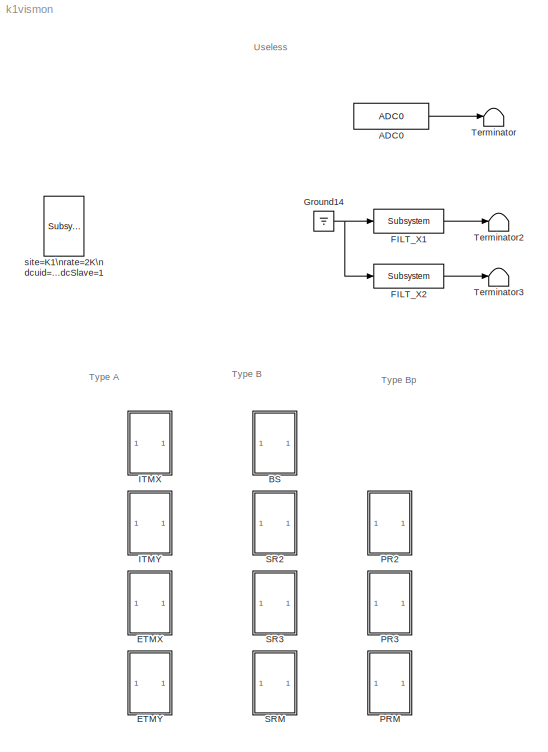
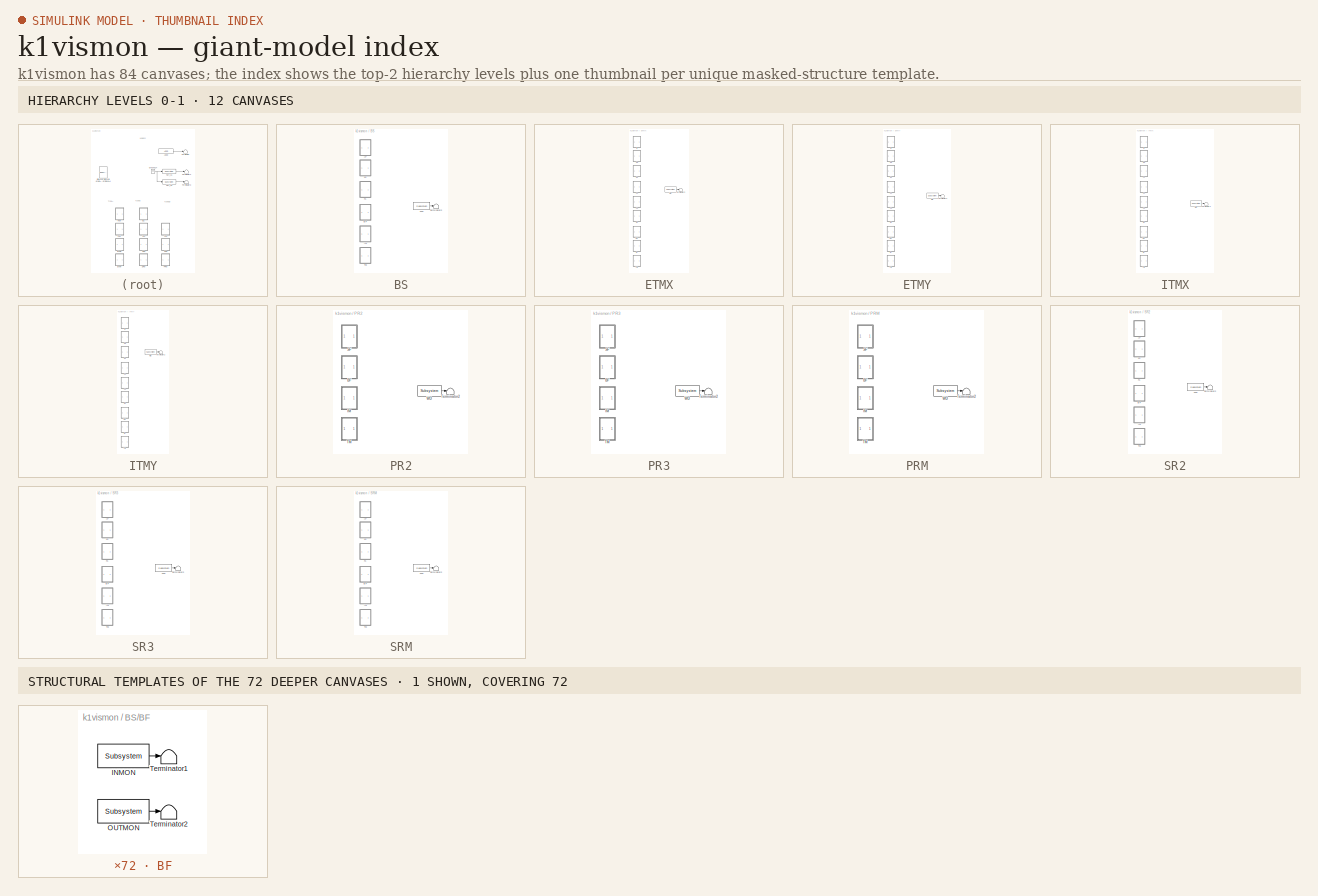
[diagram: thumbnail index - top-2 hierarchy levels (12 canvases) + 1 structural-template representatives of the remaining 72 canvases]
MODEL k1vismon
KIND model
BLOCK [Reference] ADC0  REF=cdsAdcx0/ADC0
  AttributesFormatString = %<Description>\\n%<Tag>
  Description = type-GSC_16AI64SSA\ncard_num=0
  Ports = [0, 1]
  SID = 257
  SourceBlock = cdsAdcx0/ADC0
  SourceType = SubSystem
  Tag = cdsAdc
BLOCK [SubSystem] BS
  Ports = []
  RequestExecContextInheritance = off
  SID = 448
  Variant = off
BLOCK [SubSystem] BS/BF
  Ports = []
  RequestExecContextInheritance = off
  SID = 449
  Variant = off
BLOCK [Reference] BS/BF/INMON  REF=cdsEpicsIn/Subsystem
  AttributesFormatString = %<Tag>
  Description = Purpose:                                                                              \nCreate an EPICS input channel connection to the FE realtime controls.                 \n                                                                                      \nOperation:                                                                            \nOutputs value from an EPICS ai record. Value is ...<+266ch>  <repeated x155 — deduplicated; at blocks: INMON, OUTMON, WD>
  Ports = [0, 1]
  SID = 450
  SourceBlock = cdsEpicsIn/Subsystem
  SourceType = SubSystem
  Tag = cdsEpicsIn
BLOCK [Reference] BS/BF/OUTMON  REF=cdsEpicsIn/Subsystem
  AttributesFormatString = %<Tag>
  Ports = [0, 1]
  SID = 451
  SourceBlock = cdsEpicsIn/Subsystem
  SourceType = SubSystem
  Tag = cdsEpicsIn
BLOCK [Terminator] BS/BF/Terminator1
  SID = 452
BLOCK [Terminator] BS/BF/Terminator2
  SID = 453
BLOCK [SubSystem] BS/F0
  Ports = []
  RequestExecContextInheritance = off
  SID = 454
  Variant = off
BLOCK [Reference] BS/F0/INMON  REF=cdsEpicsIn/Subsystem
  AttributesFormatString = %<Tag>
  Ports = [0, 1]
  SID = 455
  SourceBlock = cdsEpicsIn/Subsystem
  SourceType = SubSystem
  Tag = cdsEpicsIn
BLOCK [Reference] BS/F0/OUTMON  REF=cdsEpicsIn/Subsystem
  AttributesFormatString = %<Tag>
  Ports = [0, 1]
  SID = 456
  SourceBlock = cdsEpicsIn/Subsystem
  SourceType = SubSystem
  Tag = cdsEpicsIn
BLOCK [Terminator] BS/F0/Terminator1
  SID = 457
BLOCK [Terminator] BS/F0/Terminator2
  SID = 458
BLOCK [SubSystem] BS/F1
  Ports = []
  RequestExecContextInheritance = off
  SID = 459
  Variant = off
BLOCK [Reference] BS/F1/INMON  REF=cdsEpicsIn/Subsystem
  AttributesFormatString = %<Tag>
  Ports = [0, 1]
  SID = 460
  SourceBlock = cdsEpicsIn/Subsystem
  SourceType = SubSystem
  Tag = cdsEpicsIn
BLOCK [Reference] BS/F1/OUTMON  REF=cdsEpicsIn/Subsystem
  AttributesFormatString = %<Tag>
  Ports = [0, 1]
  SID = 461
  SourceBlock = cdsEpicsIn/Subsystem
  SourceType = SubSystem
  Tag = cdsEpicsIn
BLOCK [Terminator] BS/F1/Terminator1
  SID = 462
BLOCK [Terminator] BS/F1/Terminator2
  SID = 463
BLOCK [SubSystem] BS/IM
  Ports = []
  RequestExecContextInheritance = off
  SID = 474
  Variant = off
BLOCK [Reference] BS/IM/INMON  REF=cdsEpicsIn/Subsystem
  AttributesFormatString = %<Tag>
  Ports = [0, 1]
  SID = 475
  SourceBlock = cdsEpicsIn/Subsystem
  SourceType = SubSystem
  Tag = cdsEpicsIn
BLOCK [Reference] BS/IM/OUTMON  REF=cdsEpicsIn/Subsystem
  AttributesFormatString = %<Tag>
  Ports = [0, 1]
  SID = 476
  SourceBlock = cdsEpicsIn/Subsystem
  SourceType = SubSystem
  Tag = cdsEpicsIn
BLOCK [Terminator] BS/IM/Terminator1
  SID = 477
BLOCK [Terminator] BS/IM/Terminator2
  SID = 478
BLOCK [SubSystem] BS/IP
  Ports = []
  RequestExecContextInheritance = off
  SID = 479
  Variant = off
BLOCK [Reference] BS/IP/INMON  REF=cdsEpicsIn/Subsystem
  AttributesFormatString = %<Tag>
  Ports = [0, 1]
  SID = 480
  SourceBlock = cdsEpicsIn/Subsystem
  SourceType = SubSystem
  Tag = cdsEpicsIn
BLOCK [Reference] BS/IP/OUTMON  REF=cdsEpicsIn/Subsystem
  AttributesFormatString = %<Tag>
  Ports = [0, 1]
  SID = 481
  SourceBlock = cdsEpicsIn/Subsystem
  SourceType = SubSystem
  Tag = cdsEpicsIn
BLOCK [Terminator] BS/IP/Terminator1
  SID = 482
BLOCK [Terminator] BS/IP/Terminator2
  SID = 483
BLOCK [SubSystem] BS/TM
  Ports = []
  RequestExecContextInheritance = off
  SID = 489
  Variant = off
BLOCK [Reference] BS/TM/INMON  REF=cdsEpicsIn/Subsystem
  AttributesFormatString = %<Tag>
  Ports = [0, 1]
  SID = 490
  SourceBlock = cdsEpicsIn/Subsystem
  SourceType = SubSystem
  Tag = cdsEpicsIn
BLOCK [Reference] BS/TM/OUTMON  REF=cdsEpicsIn/Subsystem
  AttributesFormatString = %<Tag>
  Ports = [0, 1]
  SID = 491
  SourceBlock = cdsEpicsIn/Subsystem
  SourceType = SubSystem
  Tag = cdsEpicsIn
BLOCK [Terminator] BS/TM/Terminator1
  SID = 492
BLOCK [Terminator] BS/TM/Terminator2
  SID = 493
BLOCK [Terminator] BS/Terminator2
  SID = 502
BLOCK [Reference] BS/WD  REF=cdsEpicsIn/Subsystem
  AttributesFormatString = %<Tag>
  Ports = [0, 1]
  SID = 503
  SourceBlock = cdsEpicsIn/Subsystem
  SourceType = SubSystem
  Tag = cdsEpicsIn
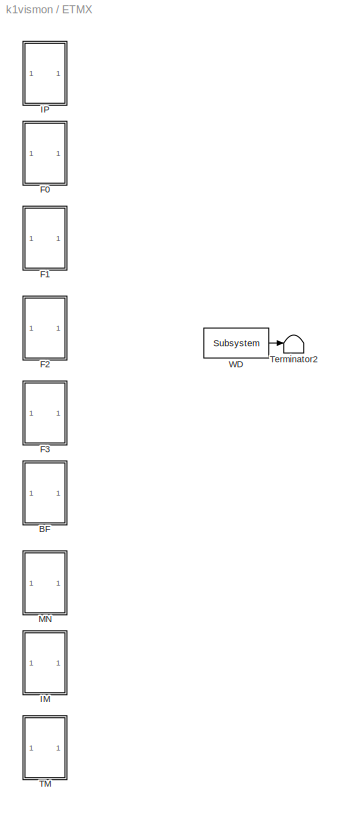
BLOCK [SubSystem] ETMX
  Ports = []
  RequestExecContextInheritance = off
  SID = 356
  Variant = off
BLOCK [SubSystem] ETMX/BF
  Ports = []
  RequestExecContextInheritance = off
  SID = 357
  Variant = off
BLOCK [Reference] ETMX/BF/INMON  REF=cdsEpicsIn/Subsystem
  AttributesFormatString = %<Tag>
  Ports = [0, 1]
  SID = 358
  SourceBlock = cdsEpicsIn/Subsystem
  SourceType = SubSystem
  Tag = cdsEpicsIn
BLOCK [Reference] ETMX/BF/OUTMON  REF=cdsEpicsIn/Subsystem
  AttributesFormatString = %<Tag>
  Ports = [0, 1]
  SID = 359
  SourceBlock = cdsEpicsIn/Subsystem
  SourceType = SubSystem
  Tag = cdsEpicsIn
BLOCK [Terminator] ETMX/BF/Terminator1
  SID = 360
BLOCK [Terminator] ETMX/BF/Terminator2
  SID = 361
BLOCK [SubSystem] ETMX/F0
  Ports = []
  RequestExecContextInheritance = off
  SID = 362
  Variant = off
BLOCK [Reference] ETMX/F0/INMON  REF=cdsEpicsIn/Subsystem
  AttributesFormatString = %<Tag>
  Ports = [0, 1]
  SID = 363
  SourceBlock = cdsEpicsIn/Subsystem
  SourceType = SubSystem
  Tag = cdsEpicsIn
BLOCK [Reference] ETMX/F0/OUTMON  REF=cdsEpicsIn/Subsystem
  AttributesFormatString = %<Tag>
  Ports = [0, 1]
  SID = 364
  SourceBlock = cdsEpicsIn/Subsystem
  SourceType = SubSystem
  Tag = cdsEpicsIn
BLOCK [Terminator] ETMX/F0/Terminator1
  SID = 365
BLOCK [Terminator] ETMX/F0/Terminator2
  SID = 366
BLOCK [SubSystem] ETMX/F1
  Ports = []
  RequestExecContextInheritance = off
  SID = 367
  Variant = off
BLOCK [Reference] ETMX/F1/INMON  REF=cdsEpicsIn/Subsystem
  AttributesFormatString = %<Tag>
  Ports = [0, 1]
  SID = 368
  SourceBlock = cdsEpicsIn/Subsystem
  SourceType = SubSystem
  Tag = cdsEpicsIn
BLOCK [Reference] ETMX/F1/OUTMON  REF=cdsEpicsIn/Subsystem
  AttributesFormatString = %<Tag>
  Ports = [0, 1]
  SID = 369
  SourceBlock = cdsEpicsIn/Subsystem
  SourceType = SubSystem
  Tag = cdsEpicsIn
BLOCK [Terminator] ETMX/F1/Terminator1
  SID = 370
BLOCK [Terminator] ETMX/F1/Terminator2
  SID = 371
BLOCK [SubSystem] ETMX/F2
  Ports = []
  RequestExecContextInheritance = off
  SID = 372
  Variant = off
BLOCK [Reference] ETMX/F2/INMON  REF=cdsEpicsIn/Subsystem
  AttributesFormatString = %<Tag>
  Ports = [0, 1]
  SID = 373
  SourceBlock = cdsEpicsIn/Subsystem
  SourceType = SubSystem
  Tag = cdsEpicsIn
BLOCK [Reference] ETMX/F2/OUTMON  REF=cdsEpicsIn/Subsystem
  AttributesFormatString = %<Tag>
  Ports = [0, 1]
  SID = 374
  SourceBlock = cdsEpicsIn/Subsystem
  SourceType = SubSystem
  Tag = cdsEpicsIn
BLOCK [Terminator] ETMX/F2/Terminator1
  SID = 375
BLOCK [Terminator] ETMX/F2/Terminator2
  SID = 376
BLOCK [SubSystem] ETMX/F3
  Ports = []
  RequestExecContextInheritance = off
  SID = 377
  Variant = off
BLOCK [Reference] ETMX/F3/INMON  REF=cdsEpicsIn/Subsystem
  AttributesFormatString = %<Tag>
  Ports = [0, 1]
  SID = 378
  SourceBlock = cdsEpicsIn/Subsystem
  SourceType = SubSystem
  Tag = cdsEpicsIn
BLOCK [Reference] ETMX/F3/OUTMON  REF=cdsEpicsIn/Subsystem
  AttributesFormatString = %<Tag>
  Ports = [0, 1]
  SID = 379
  SourceBlock = cdsEpicsIn/Subsystem
  SourceType = SubSystem
  Tag = cdsEpicsIn
BLOCK [Terminator] ETMX/F3/Terminator1
  SID = 380
BLOCK [Terminator] ETMX/F3/Terminator2
  SID = 381
BLOCK [SubSystem] ETMX/IM
  Ports = []
  RequestExecContextInheritance = off
  SID = 382
  Variant = off
BLOCK [Reference] ETMX/IM/INMON  REF=cdsEpicsIn/Subsystem
  AttributesFormatString = %<Tag>
  Ports = [0, 1]
  SID = 383
  SourceBlock = cdsEpicsIn/Subsystem
  SourceType = SubSystem
  Tag = cdsEpicsIn
BLOCK [Reference] ETMX/IM/OUTMON  REF=cdsEpicsIn/Subsystem
  AttributesFormatString = %<Tag>
  Ports = [0, 1]
  SID = 384
  SourceBlock = cdsEpicsIn/Subsystem
  SourceType = SubSystem
  Tag = cdsEpicsIn
BLOCK [Terminator] ETMX/IM/Terminator1
  SID = 385
BLOCK [Terminator] ETMX/IM/Terminator2
  SID = 386
BLOCK [SubSystem] ETMX/IP
  Ports = []
  RequestExecContextInheritance = off
  SID = 387
  Variant = off
BLOCK [Reference] ETMX/IP/INMON  REF=cdsEpicsIn/Subsystem
  AttributesFormatString = %<Tag>
  Ports = [0, 1]
  SID = 388
  SourceBlock = cdsEpicsIn/Subsystem
  SourceType = SubSystem
  Tag = cdsEpicsIn
BLOCK [Reference] ETMX/IP/OUTMON  REF=cdsEpicsIn/Subsystem
  AttributesFormatString = %<Tag>
  Ports = [0, 1]
  SID = 389
  SourceBlock = cdsEpicsIn/Subsystem
  SourceType = SubSystem
  Tag = cdsEpicsIn
BLOCK [Terminator] ETMX/IP/Terminator1
  SID = 390
BLOCK [Terminator] ETMX/IP/Terminator2
  SID = 391
BLOCK [SubSystem] ETMX/MN
  Ports = []
  RequestExecContextInheritance = off
  SID = 392
  Variant = off
BLOCK [Reference] ETMX/MN/INMON  REF=cdsEpicsIn/Subsystem
  AttributesFormatString = %<Tag>
  Ports = [0, 1]
  SID = 393
  SourceBlock = cdsEpicsIn/Subsystem
  SourceType = SubSystem
  Tag = cdsEpicsIn
BLOCK [Reference] ETMX/MN/OUTMON  REF=cdsEpicsIn/Subsystem
  AttributesFormatString = %<Tag>
  Ports = [0, 1]
  SID = 394
  SourceBlock = cdsEpicsIn/Subsystem
  SourceType = SubSystem
  Tag = cdsEpicsIn
BLOCK [Terminator] ETMX/MN/Terminator1
  SID = 395
BLOCK [Terminator] ETMX/MN/Terminator2
  SID = 396
BLOCK [SubSystem] ETMX/TM
  Ports = []
  RequestExecContextInheritance = off
  SID = 397
  Variant = off
BLOCK [Reference] ETMX/TM/INMON  REF=cdsEpicsIn/Subsystem
  AttributesFormatString = %<Tag>
  Ports = [0, 1]
  SID = 398
  SourceBlock = cdsEpicsIn/Subsystem
  SourceType = SubSystem
  Tag = cdsEpicsIn
BLOCK [Reference] ETMX/TM/OUTMON  REF=cdsEpicsIn/Subsystem
  AttributesFormatString = %<Tag>
  Ports = [0, 1]
  SID = 399
  SourceBlock = cdsEpicsIn/Subsystem
  SourceType = SubSystem
  Tag = cdsEpicsIn
BLOCK [Terminator] ETMX/TM/Terminator1
  SID = 400
BLOCK [Terminator] ETMX/TM/Terminator2
  SID = 401
BLOCK [Terminator] ETMX/Terminator2
  SID = 498
BLOCK [Reference] ETMX/WD  REF=cdsEpicsIn/Subsystem
  AttributesFormatString = %<Tag>
  Ports = [0, 1]
  SID = 499
  SourceBlock = cdsEpicsIn/Subsystem
  SourceType = SubSystem
  Tag = cdsEpicsIn
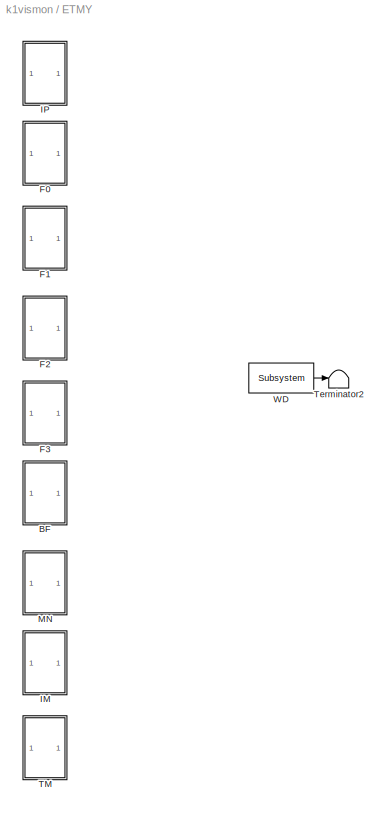
BLOCK [SubSystem] ETMY
  Ports = []
  RequestExecContextInheritance = off
  SID = 402
  Variant = off
BLOCK [SubSystem] ETMY/BF
  Ports = []
  RequestExecContextInheritance = off
  SID = 403
  Variant = off
BLOCK [Reference] ETMY/BF/INMON  REF=cdsEpicsIn/Subsystem
  AttributesFormatString = %<Tag>
  Ports = [0, 1]
  SID = 404
  SourceBlock = cdsEpicsIn/Subsystem
  SourceType = SubSystem
  Tag = cdsEpicsIn
BLOCK [Reference] ETMY/BF/OUTMON  REF=cdsEpicsIn/Subsystem
  AttributesFormatString = %<Tag>
  Ports = [0, 1]
  SID = 405
  SourceBlock = cdsEpicsIn/Subsystem
  SourceType = SubSystem
  Tag = cdsEpicsIn
BLOCK [Terminator] ETMY/BF/Terminator1
  SID = 406
BLOCK [Terminator] ETMY/BF/Terminator2
  SID = 407
BLOCK [SubSystem] ETMY/F0
  Ports = []
  RequestExecContextInheritance = off
  SID = 408
  Variant = off
BLOCK [Reference] ETMY/F0/INMON  REF=cdsEpicsIn/Subsystem
  AttributesFormatString = %<Tag>
  Ports = [0, 1]
  SID = 409
  SourceBlock = cdsEpicsIn/Subsystem
  SourceType = SubSystem
  Tag = cdsEpicsIn
BLOCK [Reference] ETMY/F0/OUTMON  REF=cdsEpicsIn/Subsystem
  AttributesFormatString = %<Tag>
  Ports = [0, 1]
  SID = 410
  SourceBlock = cdsEpicsIn/Subsystem
  SourceType = SubSystem
  Tag = cdsEpicsIn
BLOCK [Terminator] ETMY/F0/Terminator1
  SID = 411
BLOCK [Terminator] ETMY/F0/Terminator2
  SID = 412
BLOCK [SubSystem] ETMY/F1
  Ports = []
  RequestExecContextInheritance = off
  SID = 413
  Variant = off
BLOCK [Reference] ETMY/F1/INMON  REF=cdsEpicsIn/Subsystem
  AttributesFormatString = %<Tag>
  Ports = [0, 1]
  SID = 414
  SourceBlock = cdsEpicsIn/Subsystem
  SourceType = SubSystem
  Tag = cdsEpicsIn
BLOCK [Reference] ETMY/F1/OUTMON  REF=cdsEpicsIn/Subsystem
  AttributesFormatString = %<Tag>
  Ports = [0, 1]
  SID = 415
  SourceBlock = cdsEpicsIn/Subsystem
  SourceType = SubSystem
  Tag = cdsEpicsIn
BLOCK [Terminator] ETMY/F1/Terminator1
  SID = 416
BLOCK [Terminator] ETMY/F1/Terminator2
  SID = 417
BLOCK [SubSystem] ETMY/F2
  Ports = []
  RequestExecContextInheritance = off
  SID = 418
  Variant = off
BLOCK [Reference] ETMY/F2/INMON  REF=cdsEpicsIn/Subsystem
  AttributesFormatString = %<Tag>
  Ports = [0, 1]
  SID = 419
  SourceBlock = cdsEpicsIn/Subsystem
  SourceType = SubSystem
  Tag = cdsEpicsIn
BLOCK [Reference] ETMY/F2/OUTMON  REF=cdsEpicsIn/Subsystem
  AttributesFormatString = %<Tag>
  Ports = [0, 1]
  SID = 420
  SourceBlock = cdsEpicsIn/Subsystem
  SourceType = SubSystem
  Tag = cdsEpicsIn
BLOCK [Terminator] ETMY/F2/Terminator1
  SID = 421
BLOCK [Terminator] ETMY/F2/Terminator2
  SID = 422
BLOCK [SubSystem] ETMY/F3
  Ports = []
  RequestExecContextInheritance = off
  SID = 423
  Variant = off
BLOCK [Reference] ETMY/F3/INMON  REF=cdsEpicsIn/Subsystem
  AttributesFormatString = %<Tag>
  Ports = [0, 1]
  SID = 424
  SourceBlock = cdsEpicsIn/Subsystem
  SourceType = SubSystem
  Tag = cdsEpicsIn
BLOCK [Reference] ETMY/F3/OUTMON  REF=cdsEpicsIn/Subsystem
  AttributesFormatString = %<Tag>
  Ports = [0, 1]
  SID = 425
  SourceBlock = cdsEpicsIn/Subsystem
  SourceType = SubSystem
  Tag = cdsEpicsIn
BLOCK [Terminator] ETMY/F3/Terminator1
  SID = 426
BLOCK [Terminator] ETMY/F3/Terminator2
  SID = 427
BLOCK [SubSystem] ETMY/IM
  Ports = []
  RequestExecContextInheritance = off
  SID = 428
  Variant = off
BLOCK [Reference] ETMY/IM/INMON  REF=cdsEpicsIn/Subsystem
  AttributesFormatString = %<Tag>
  Ports = [0, 1]
  SID = 429
  SourceBlock = cdsEpicsIn/Subsystem
  SourceType = SubSystem
  Tag = cdsEpicsIn
BLOCK [Reference] ETMY/IM/OUTMON  REF=cdsEpicsIn/Subsystem
  AttributesFormatString = %<Tag>
  Ports = [0, 1]
  SID = 430
  SourceBlock = cdsEpicsIn/Subsystem
  SourceType = SubSystem
  Tag = cdsEpicsIn
BLOCK [Terminator] ETMY/IM/Terminator1
  SID = 431
BLOCK [Terminator] ETMY/IM/Terminator2
  SID = 432
BLOCK [SubSystem] ETMY/IP
  Ports = []
  RequestExecContextInheritance = off
  SID = 433
  Variant = off
BLOCK [Reference] ETMY/IP/INMON  REF=cdsEpicsIn/Subsystem
  AttributesFormatString = %<Tag>
  Ports = [0, 1]
  SID = 434
  SourceBlock = cdsEpicsIn/Subsystem
  SourceType = SubSystem
  Tag = cdsEpicsIn
BLOCK [Reference] ETMY/IP/OUTMON  REF=cdsEpicsIn/Subsystem
  AttributesFormatString = %<Tag>
  Ports = [0, 1]
  SID = 435
  SourceBlock = cdsEpicsIn/Subsystem
  SourceType = SubSystem
  Tag = cdsEpicsIn
BLOCK [Terminator] ETMY/IP/Terminator1
  SID = 436
BLOCK [Terminator] ETMY/IP/Terminator2
  SID = 437
BLOCK [SubSystem] ETMY/MN
  Ports = []
  RequestExecContextInheritance = off
  SID = 438
  Variant = off
BLOCK [Reference] ETMY/MN/INMON  REF=cdsEpicsIn/Subsystem
  AttributesFormatString = %<Tag>
  Ports = [0, 1]
  SID = 439
  SourceBlock = cdsEpicsIn/Subsystem
  SourceType = SubSystem
  Tag = cdsEpicsIn
BLOCK [Reference] ETMY/MN/OUTMON  REF=cdsEpicsIn/Subsystem
  AttributesFormatString = %<Tag>
  Ports = [0, 1]
  SID = 440
  SourceBlock = cdsEpicsIn/Subsystem
  SourceType = SubSystem
  Tag = cdsEpicsIn
BLOCK [Terminator] ETMY/MN/Terminator1
  SID = 441
BLOCK [Terminator] ETMY/MN/Terminator2
  SID = 442
BLOCK [SubSystem] ETMY/TM
  Ports = []
  RequestExecContextInheritance = off
  SID = 443
  Variant = off
BLOCK [Reference] ETMY/TM/INMON  REF=cdsEpicsIn/Subsystem
  AttributesFormatString = %<Tag>
  Ports = [0, 1]
  SID = 444
  SourceBlock = cdsEpicsIn/Subsystem
  SourceType = SubSystem
  Tag = cdsEpicsIn
BLOCK [Reference] ETMY/TM/OUTMON  REF=cdsEpicsIn/Subsystem
  AttributesFormatString = %<Tag>
  Ports = [0, 1]
  SID = 445
  SourceBlock = cdsEpicsIn/Subsystem
  SourceType = SubSystem
  Tag = cdsEpicsIn
BLOCK [Terminator] ETMY/TM/Terminator1
  SID = 446
BLOCK [Terminator] ETMY/TM/Terminator2
  SID = 447
BLOCK [Terminator] ETMY/Terminator2
  SID = 500
BLOCK [Reference] ETMY/WD  REF=cdsEpicsIn/Subsystem
  AttributesFormatString = %<Tag>
  Ports = [0, 1]
  SID = 501
  SourceBlock = cdsEpicsIn/Subsystem
  SourceType = SubSystem
  Tag = cdsEpicsIn
BLOCK [Reference] FILT_X1  REF=cdsFilt/Subsystem
  AttributesFormatString = %<Tag>
  Description = Purpose:                                                                                                                                                                                                                                  \nStandard CDS IIR filter module.                                                                                                                                     ...<+1302ch>
  Ports = [1, 1]
  SID = 258
  SourceBlock = cdsFilt/Subsystem
  SourceType = SubSystem
  Tag = cdsFilt
BLOCK [Reference] FILT_X2  REF=cdsFilt/Subsystem
  AttributesFormatString = %<Tag>
  Description = Purpose:                                                                                                                                                                                                                                  \nStandard CDS IIR filter module.                                                                                                                                     ...<+1302ch>
  Ports = [1, 1]
  SID = 259
  SourceBlock = cdsFilt/Subsystem
  SourceType = SubSystem
  Tag = cdsFilt
BLOCK [Ground] Ground14
  SID = 6
BLOCK [SubSystem] ITMX
  Ports = []
  RequestExecContextInheritance = off
  SID = 115
  Variant = off
BLOCK [SubSystem] ITMX/BF
  Ports = []
  RequestExecContextInheritance = off
  SID = 290
  Variant = off
BLOCK [Reference] ITMX/BF/INMON  REF=cdsEpicsIn/Subsystem
  AttributesFormatString = %<Tag>
  Ports = [0, 1]
  SID = 291
  SourceBlock = cdsEpicsIn/Subsystem
  SourceType = SubSystem
  Tag = cdsEpicsIn
BLOCK [Reference] ITMX/BF/OUTMON  REF=cdsEpicsIn/Subsystem
  AttributesFormatString = %<Tag>
  Ports = [0, 1]
  SID = 292
  SourceBlock = cdsEpicsIn/Subsystem
  SourceType = SubSystem
  Tag = cdsEpicsIn
BLOCK [Terminator] ITMX/BF/Terminator1
  SID = 293
BLOCK [Terminator] ITMX/BF/Terminator2
  SID = 294
BLOCK [SubSystem] ITMX/F0
  Ports = []
  RequestExecContextInheritance = off
  SID = 270
  Variant = off
BLOCK [Reference] ITMX/F0/INMON  REF=cdsEpicsIn/Subsystem
  AttributesFormatString = %<Tag>
  Ports = [0, 1]
  SID = 271
  SourceBlock = cdsEpicsIn/Subsystem
  SourceType = SubSystem
  Tag = cdsEpicsIn
BLOCK [Reference] ITMX/F0/OUTMON  REF=cdsEpicsIn/Subsystem
  AttributesFormatString = %<Tag>
  Ports = [0, 1]
  SID = 272
  SourceBlock = cdsEpicsIn/Subsystem
  SourceType = SubSystem
  Tag = cdsEpicsIn
BLOCK [Terminator] ITMX/F0/Terminator1
  SID = 273
BLOCK [Terminator] ITMX/F0/Terminator2
  SID = 274
BLOCK [SubSystem] ITMX/F1
  Ports = []
  RequestExecContextInheritance = off
  SID = 275
  Variant = off
BLOCK [Reference] ITMX/F1/INMON  REF=cdsEpicsIn/Subsystem
  AttributesFormatString = %<Tag>
  Ports = [0, 1]
  SID = 276
  SourceBlock = cdsEpicsIn/Subsystem
  SourceType = SubSystem
  Tag = cdsEpicsIn
BLOCK [Reference] ITMX/F1/OUTMON  REF=cdsEpicsIn/Subsystem
  AttributesFormatString = %<Tag>
  Ports = [0, 1]
  SID = 277
  SourceBlock = cdsEpicsIn/Subsystem
  SourceType = SubSystem
  Tag = cdsEpicsIn
BLOCK [Terminator] ITMX/F1/Terminator1
  SID = 278
BLOCK [Terminator] ITMX/F1/Terminator2
  SID = 279
BLOCK [SubSystem] ITMX/F2
  Ports = []
  RequestExecContextInheritance = off
  SID = 280
  Variant = off
BLOCK [Reference] ITMX/F2/INMON  REF=cdsEpicsIn/Subsystem
  AttributesFormatString = %<Tag>
  Ports = [0, 1]
  SID = 281
  SourceBlock = cdsEpicsIn/Subsystem
  SourceType = SubSystem
  Tag = cdsEpicsIn
BLOCK [Reference] ITMX/F2/OUTMON  REF=cdsEpicsIn/Subsystem
  AttributesFormatString = %<Tag>
  Ports = [0, 1]
  SID = 282
  SourceBlock = cdsEpicsIn/Subsystem
  SourceType = SubSystem
  Tag = cdsEpicsIn
BLOCK [Terminator] ITMX/F2/Terminator1
  SID = 283
BLOCK [Terminator] ITMX/F2/Terminator2
  SID = 284
BLOCK [SubSystem] ITMX/F3
  Ports = []
  RequestExecContextInheritance = off
  SID = 285
  Variant = off
BLOCK [Reference] ITMX/F3/INMON  REF=cdsEpicsIn/Subsystem
  AttributesFormatString = %<Tag>
  Ports = [0, 1]
  SID = 286
  SourceBlock = cdsEpicsIn/Subsystem
  SourceType = SubSystem
  Tag = cdsEpicsIn
BLOCK [Reference] ITMX/F3/OUTMON  REF=cdsEpicsIn/Subsystem
  AttributesFormatString = %<Tag>
  Ports = [0, 1]
  SID = 287
  SourceBlock = cdsEpicsIn/Subsystem
  SourceType = SubSystem
  Tag = cdsEpicsIn
BLOCK [Terminator] ITMX/F3/Terminator1
  SID = 288
BLOCK [Terminator] ITMX/F3/Terminator2
  SID = 289
BLOCK [SubSystem] ITMX/IM
  Ports = []
  RequestExecContextInheritance = off
  SID = 300
  Variant = off
BLOCK [Reference] ITMX/IM/INMON  REF=cdsEpicsIn/Subsystem
  AttributesFormatString = %<Tag>
  Ports = [0, 1]
  SID = 301
  SourceBlock = cdsEpicsIn/Subsystem
  SourceType = SubSystem
  Tag = cdsEpicsIn
BLOCK [Reference] ITMX/IM/OUTMON  REF=cdsEpicsIn/Subsystem
  AttributesFormatString = %<Tag>
  Ports = [0, 1]
  SID = 302
  SourceBlock = cdsEpicsIn/Subsystem
  SourceType = SubSystem
  Tag = cdsEpicsIn
BLOCK [Terminator] ITMX/IM/Terminator1
  SID = 303
BLOCK [Terminator] ITMX/IM/Terminator2
  SID = 304
BLOCK [SubSystem] ITMX/IP
  Ports = []
  RequestExecContextInheritance = off
  SID = 98
  Variant = off
BLOCK [Reference] ITMX/IP/INMON  REF=cdsEpicsIn/Subsystem
  AttributesFormatString = %<Tag>
  Ports = [0, 1]
  SID = 41
  SourceBlock = cdsEpicsIn/Subsystem
  SourceType = SubSystem
  Tag = cdsEpicsIn
BLOCK [Reference] ITMX/IP/OUTMON  REF=cdsEpicsIn/Subsystem
  AttributesFormatString = %<Tag>
  Ports = [0, 1]
  SID = 102
  SourceBlock = cdsEpicsIn/Subsystem
  SourceType = SubSystem
  Tag = cdsEpicsIn
BLOCK [Terminator] ITMX/IP/Terminator1
  SID = 65
BLOCK [Terminator] ITMX/IP/Terminator2
  SID = 103
BLOCK [SubSystem] ITMX/MN
  Ports = []
  RequestExecContextInheritance = off
  SID = 295
  Variant = off
BLOCK [Reference] ITMX/MN/INMON  REF=cdsEpicsIn/Subsystem
  AttributesFormatString = %<Tag>
  Ports = [0, 1]
  SID = 296
  SourceBlock = cdsEpicsIn/Subsystem
  SourceType = SubSystem
  Tag = cdsEpicsIn
BLOCK [Reference] ITMX/MN/OUTMON  REF=cdsEpicsIn/Subsystem
  AttributesFormatString = %<Tag>
  Ports = [0, 1]
  SID = 297
  SourceBlock = cdsEpicsIn/Subsystem
  SourceType = SubSystem
  Tag = cdsEpicsIn
BLOCK [Terminator] ITMX/MN/Terminator1
  SID = 298
BLOCK [Terminator] ITMX/MN/Terminator2
  SID = 299
BLOCK [SubSystem] ITMX/TM
  Ports = []
  RequestExecContextInheritance = off
  SID = 305
  Variant = off
BLOCK [Reference] ITMX/TM/INMON  REF=cdsEpicsIn/Subsystem
  AttributesFormatString = %<Tag>
  Ports = [0, 1]
  SID = 306
  SourceBlock = cdsEpicsIn/Subsystem
  SourceType = SubSystem
  Tag = cdsEpicsIn
BLOCK [Reference] ITMX/TM/OUTMON  REF=cdsEpicsIn/Subsystem
  AttributesFormatString = %<Tag>
  Ports = [0, 1]
  SID = 307
  SourceBlock = cdsEpicsIn/Subsystem
  SourceType = SubSystem
  Tag = cdsEpicsIn
BLOCK [Terminator] ITMX/TM/Terminator1
  SID = 308
BLOCK [Terminator] ITMX/TM/Terminator2
  SID = 309
BLOCK [Terminator] ITMX/Terminator2
  SID = 495
BLOCK [Reference] ITMX/WD  REF=cdsEpicsIn/Subsystem
  AttributesFormatString = %<Tag>
  Ports = [0, 1]
  SID = 494
  SourceBlock = cdsEpicsIn/Subsystem
  SourceType = SubSystem
  Tag = cdsEpicsIn
BLOCK [SubSystem] ITMY
  Ports = []
  RequestExecContextInheritance = off
  SID = 310
  Variant = off
BLOCK [SubSystem] ITMY/BF
  Ports = []
  RequestExecContextInheritance = off
  SID = 311
  Variant = off
BLOCK [Reference] ITMY/BF/INMON  REF=cdsEpicsIn/Subsystem
  AttributesFormatString = %<Tag>
  Ports = [0, 1]
  SID = 312
  SourceBlock = cdsEpicsIn/Subsystem
  SourceType = SubSystem
  Tag = cdsEpicsIn
BLOCK [Reference] ITMY/BF/OUTMON  REF=cdsEpicsIn/Subsystem
  AttributesFormatString = %<Tag>
  Ports = [0, 1]
  SID = 313
  SourceBlock = cdsEpicsIn/Subsystem
  SourceType = SubSystem
  Tag = cdsEpicsIn
BLOCK [Terminator] ITMY/BF/Terminator1
  SID = 314
BLOCK [Terminator] ITMY/BF/Terminator2
  SID = 315
BLOCK [SubSystem] ITMY/F0
  Ports = []
  RequestExecContextInheritance = off
  SID = 316
  Variant = off
BLOCK [Reference] ITMY/F0/INMON  REF=cdsEpicsIn/Subsystem
  AttributesFormatString = %<Tag>
  Ports = [0, 1]
  SID = 317
  SourceBlock = cdsEpicsIn/Subsystem
  SourceType = SubSystem
  Tag = cdsEpicsIn
BLOCK [Reference] ITMY/F0/OUTMON  REF=cdsEpicsIn/Subsystem
  AttributesFormatString = %<Tag>
  Ports = [0, 1]
  SID = 318
  SourceBlock = cdsEpicsIn/Subsystem
  SourceType = SubSystem
  Tag = cdsEpicsIn
BLOCK [Terminator] ITMY/F0/Terminator1
  SID = 319
BLOCK [Terminator] ITMY/F0/Terminator2
  SID = 320
BLOCK [SubSystem] ITMY/F1
  Ports = []
  RequestExecContextInheritance = off
  SID = 321
  Variant = off
BLOCK [Reference] ITMY/F1/INMON  REF=cdsEpicsIn/Subsystem
  AttributesFormatString = %<Tag>
  Ports = [0, 1]
  SID = 322
  SourceBlock = cdsEpicsIn/Subsystem
  SourceType = SubSystem
  Tag = cdsEpicsIn
BLOCK [Reference] ITMY/F1/OUTMON  REF=cdsEpicsIn/Subsystem
  AttributesFormatString = %<Tag>
  Ports = [0, 1]
  SID = 323
  SourceBlock = cdsEpicsIn/Subsystem
  SourceType = SubSystem
  Tag = cdsEpicsIn
BLOCK [Terminator] ITMY/F1/Terminator1
  SID = 324
BLOCK [Terminator] ITMY/F1/Terminator2
  SID = 325
BLOCK [SubSystem] ITMY/F2
  Ports = []
  RequestExecContextInheritance = off
  SID = 326
  Variant = off
BLOCK [Reference] ITMY/F2/INMON  REF=cdsEpicsIn/Subsystem
  AttributesFormatString = %<Tag>
  Ports = [0, 1]
  SID = 327
  SourceBlock = cdsEpicsIn/Subsystem
  SourceType = SubSystem
  Tag = cdsEpicsIn
BLOCK [Reference] ITMY/F2/OUTMON  REF=cdsEpicsIn/Subsystem
  AttributesFormatString = %<Tag>
  Ports = [0, 1]
  SID = 328
  SourceBlock = cdsEpicsIn/Subsystem
  SourceType = SubSystem
  Tag = cdsEpicsIn
BLOCK [Terminator] ITMY/F2/Terminator1
  SID = 329
BLOCK [Terminator] ITMY/F2/Terminator2
  SID = 330
BLOCK [SubSystem] ITMY/F3
  Ports = []
  RequestExecContextInheritance = off
  SID = 331
  Variant = off
BLOCK [Reference] ITMY/F3/INMON  REF=cdsEpicsIn/Subsystem
  AttributesFormatString = %<Tag>
  Ports = [0, 1]
  SID = 332
  SourceBlock = cdsEpicsIn/Subsystem
  SourceType = SubSystem
  Tag = cdsEpicsIn
BLOCK [Reference] ITMY/F3/OUTMON  REF=cdsEpicsIn/Subsystem
  AttributesFormatString = %<Tag>
  Ports = [0, 1]
  SID = 333
  SourceBlock = cdsEpicsIn/Subsystem
  SourceType = SubSystem
  Tag = cdsEpicsIn
BLOCK [Terminator] ITMY/F3/Terminator1
  SID = 334
BLOCK [Terminator] ITMY/F3/Terminator2
  SID = 335
BLOCK [SubSystem] ITMY/IM
  Ports = []
  RequestExecContextInheritance = off
  SID = 336
  Variant = off
BLOCK [Reference] ITMY/IM/INMON  REF=cdsEpicsIn/Subsystem
  AttributesFormatString = %<Tag>
  Ports = [0, 1]
  SID = 337
  SourceBlock = cdsEpicsIn/Subsystem
  SourceType = SubSystem
  Tag = cdsEpicsIn
BLOCK [Reference] ITMY/IM/OUTMON  REF=cdsEpicsIn/Subsystem
  AttributesFormatString = %<Tag>
  Ports = [0, 1]
  SID = 338
  SourceBlock = cdsEpicsIn/Subsystem
  SourceType = SubSystem
  Tag = cdsEpicsIn
BLOCK [Terminator] ITMY/IM/Terminator1
  SID = 339
BLOCK [Terminator] ITMY/IM/Terminator2
  SID = 340
BLOCK [SubSystem] ITMY/IP
  Ports = []
  RequestExecContextInheritance = off
  SID = 341
  Variant = off
BLOCK [Reference] ITMY/IP/INMON  REF=cdsEpicsIn/Subsystem
  AttributesFormatString = %<Tag>
  Ports = [0, 1]
  SID = 342
  SourceBlock = cdsEpicsIn/Subsystem
  SourceType = SubSystem
  Tag = cdsEpicsIn
BLOCK [Reference] ITMY/IP/OUTMON  REF=cdsEpicsIn/Subsystem
  AttributesFormatString = %<Tag>
  Ports = [0, 1]
  SID = 343
  SourceBlock = cdsEpicsIn/Subsystem
  SourceType = SubSystem
  Tag = cdsEpicsIn
BLOCK [Terminator] ITMY/IP/Terminator1
  SID = 344
BLOCK [Terminator] ITMY/IP/Terminator2
  SID = 345
BLOCK [SubSystem] ITMY/MN
  Ports = []
  RequestExecContextInheritance = off
  SID = 346
  Variant = off
BLOCK [Reference] ITMY/MN/INMON  REF=cdsEpicsIn/Subsystem
  AttributesFormatString = %<Tag>
  Ports = [0, 1]
  SID = 347
  SourceBlock = cdsEpicsIn/Subsystem
  SourceType = SubSystem
  Tag = cdsEpicsIn
BLOCK [Reference] ITMY/MN/OUTMON  REF=cdsEpicsIn/Subsystem
  AttributesFormatString = %<Tag>
  Ports = [0, 1]
  SID = 348
  SourceBlock = cdsEpicsIn/Subsystem
  SourceType = SubSystem
  Tag = cdsEpicsIn
BLOCK [Terminator] ITMY/MN/Terminator1
  SID = 349
BLOCK [Terminator] ITMY/MN/Terminator2
  SID = 350
BLOCK [SubSystem] ITMY/TM
  Ports = []
  RequestExecContextInheritance = off
  SID = 351
  Variant = off
BLOCK [Reference] ITMY/TM/INMON  REF=cdsEpicsIn/Subsystem
  AttributesFormatString = %<Tag>
  Ports = [0, 1]
  SID = 352
  SourceBlock = cdsEpicsIn/Subsystem
  SourceType = SubSystem
  Tag = cdsEpicsIn
BLOCK [Reference] ITMY/TM/OUTMON  REF=cdsEpicsIn/Subsystem
  AttributesFormatString = %<Tag>
  Ports = [0, 1]
  SID = 353
  SourceBlock = cdsEpicsIn/Subsystem
  SourceType = SubSystem
  Tag = cdsEpicsIn
BLOCK [Terminator] ITMY/TM/Terminator1
  SID = 354
BLOCK [Terminator] ITMY/TM/Terminator2
  SID = 355
BLOCK [Terminator] ITMY/Terminator2
  SID = 496
BLOCK [Reference] ITMY/WD  REF=cdsEpicsIn/Subsystem
  AttributesFormatString = %<Tag>
  Ports = [0, 1]
  SID = 497
  SourceBlock = cdsEpicsIn/Subsystem
  SourceType = SubSystem
  Tag = cdsEpicsIn
BLOCK [SubSystem] PR2
  Ports = []
  RequestExecContextInheritance = off
  SID = 603
  Variant = off
BLOCK [SubSystem] PR2/BF
  Ports = []
  RequestExecContextInheritance = off
  SID = 604
  Variant = off
BLOCK [Reference] PR2/BF/INMON  REF=cdsEpicsIn/Subsystem
  AttributesFormatString = %<Tag>
  Ports = [0, 1]
  SID = 605
  SourceBlock = cdsEpicsIn/Subsystem
  SourceType = SubSystem
  Tag = cdsEpicsIn
BLOCK [Reference] PR2/BF/OUTMON  REF=cdsEpicsIn/Subsystem
  AttributesFormatString = %<Tag>
  Ports = [0, 1]
  SID = 606
  SourceBlock = cdsEpicsIn/Subsystem
  SourceType = SubSystem
  Tag = cdsEpicsIn
BLOCK [Terminator] PR2/BF/Terminator1
  SID = 607
BLOCK [Terminator] PR2/BF/Terminator2
  SID = 608
BLOCK [SubSystem] PR2/IM
  Ports = []
  RequestExecContextInheritance = off
  SID = 619
  Variant = off
BLOCK [Reference] PR2/IM/INMON  REF=cdsEpicsIn/Subsystem
  AttributesFormatString = %<Tag>
  Ports = [0, 1]
  SID = 620
  SourceBlock = cdsEpicsIn/Subsystem
  SourceType = SubSystem
  Tag = cdsEpicsIn
BLOCK [Reference] PR2/IM/OUTMON  REF=cdsEpicsIn/Subsystem
  AttributesFormatString = %<Tag>
  Ports = [0, 1]
  SID = 621
  SourceBlock = cdsEpicsIn/Subsystem
  SourceType = SubSystem
  Tag = cdsEpicsIn
BLOCK [Terminator] PR2/IM/Terminator1
  SID = 622
BLOCK [Terminator] PR2/IM/Terminator2
  SID = 623
BLOCK [SubSystem] PR2/SF
  Ports = []
  RequestExecContextInheritance = off
  SID = 609
  Variant = off
BLOCK [Reference] PR2/SF/INMON  REF=cdsEpicsIn/Subsystem
  AttributesFormatString = %<Tag>
  Ports = [0, 1]
  SID = 610
  SourceBlock = cdsEpicsIn/Subsystem
  SourceType = SubSystem
  Tag = cdsEpicsIn
BLOCK [Reference] PR2/SF/OUTMON  REF=cdsEpicsIn/Subsystem
  AttributesFormatString = %<Tag>
  Ports = [0, 1]
  SID = 611
  SourceBlock = cdsEpicsIn/Subsystem
  SourceType = SubSystem
  Tag = cdsEpicsIn
BLOCK [Terminator] PR2/SF/Terminator1
  SID = 612
BLOCK [Terminator] PR2/SF/Terminator2
  SID = 613
BLOCK [SubSystem] PR2/TM
  Ports = []
  RequestExecContextInheritance = off
  SID = 629
  Variant = off
BLOCK [Reference] PR2/TM/INMON  REF=cdsEpicsIn/Subsystem
  AttributesFormatString = %<Tag>
  Ports = [0, 1]
  SID = 630
  SourceBlock = cdsEpicsIn/Subsystem
  SourceType = SubSystem
  Tag = cdsEpicsIn
BLOCK [Reference] PR2/TM/OUTMON  REF=cdsEpicsIn/Subsystem
  AttributesFormatString = %<Tag>
  Ports = [0, 1]
  SID = 631
  SourceBlock = cdsEpicsIn/Subsystem
  SourceType = SubSystem
  Tag = cdsEpicsIn
BLOCK [Terminator] PR2/TM/Terminator1
  SID = 632
BLOCK [Terminator] PR2/TM/Terminator2
  SID = 633
BLOCK [Terminator] PR2/Terminator2
  SID = 634
BLOCK [Reference] PR2/WD  REF=cdsEpicsIn/Subsystem
  AttributesFormatString = %<Tag>
  Ports = [0, 1]
  SID = 635
  SourceBlock = cdsEpicsIn/Subsystem
  SourceType = SubSystem
  Tag = cdsEpicsIn
BLOCK [SubSystem] PR3
  Ports = []
  RequestExecContextInheritance = off
  SID = 636
  Variant = off
BLOCK [SubSystem] PR3/BF
  Ports = []
  RequestExecContextInheritance = off
  SID = 637
  Variant = off
BLOCK [Reference] PR3/BF/INMON  REF=cdsEpicsIn/Subsystem
  AttributesFormatString = %<Tag>
  Ports = [0, 1]
  SID = 638
  SourceBlock = cdsEpicsIn/Subsystem
  SourceType = SubSystem
  Tag = cdsEpicsIn
BLOCK [Reference] PR3/BF/OUTMON  REF=cdsEpicsIn/Subsystem
  AttributesFormatString = %<Tag>
  Ports = [0, 1]
  SID = 639
  SourceBlock = cdsEpicsIn/Subsystem
  SourceType = SubSystem
  Tag = cdsEpicsIn
BLOCK [Terminator] PR3/BF/Terminator1
  SID = 640
BLOCK [Terminator] PR3/BF/Terminator2
  SID = 641
BLOCK [SubSystem] PR3/IM
  Ports = []
  RequestExecContextInheritance = off
  SID = 642
  Variant = off
BLOCK [Reference] PR3/IM/INMON  REF=cdsEpicsIn/Subsystem
  AttributesFormatString = %<Tag>
  Ports = [0, 1]
  SID = 643
  SourceBlock = cdsEpicsIn/Subsystem
  SourceType = SubSystem
  Tag = cdsEpicsIn
BLOCK [Reference] PR3/IM/OUTMON  REF=cdsEpicsIn/Subsystem
  AttributesFormatString = %<Tag>
  Ports = [0, 1]
  SID = 644
  SourceBlock = cdsEpicsIn/Subsystem
  SourceType = SubSystem
  Tag = cdsEpicsIn
BLOCK [Terminator] PR3/IM/Terminator1
  SID = 645
BLOCK [Terminator] PR3/IM/Terminator2
  SID = 646
BLOCK [SubSystem] PR3/SF
  Ports = []
  RequestExecContextInheritance = off
  SID = 647
  Variant = off
BLOCK [Reference] PR3/SF/INMON  REF=cdsEpicsIn/Subsystem
  AttributesFormatString = %<Tag>
  Ports = [0, 1]
  SID = 648
  SourceBlock = cdsEpicsIn/Subsystem
  SourceType = SubSystem
  Tag = cdsEpicsIn
BLOCK [Reference] PR3/SF/OUTMON  REF=cdsEpicsIn/Subsystem
  AttributesFormatString = %<Tag>
  Ports = [0, 1]
  SID = 649
  SourceBlock = cdsEpicsIn/Subsystem
  SourceType = SubSystem
  Tag = cdsEpicsIn
BLOCK [Terminator] PR3/SF/Terminator1
  SID = 650
BLOCK [Terminator] PR3/SF/Terminator2
  SID = 651
BLOCK [SubSystem] PR3/TM
  Ports = []
  RequestExecContextInheritance = off
  SID = 652
  Variant = off
BLOCK [Reference] PR3/TM/INMON  REF=cdsEpicsIn/Subsystem
  AttributesFormatString = %<Tag>
  Ports = [0, 1]
  SID = 653
  SourceBlock = cdsEpicsIn/Subsystem
  SourceType = SubSystem
  Tag = cdsEpicsIn
BLOCK [Reference] PR3/TM/OUTMON  REF=cdsEpicsIn/Subsystem
  AttributesFormatString = %<Tag>
  Ports = [0, 1]
  SID = 654
  SourceBlock = cdsEpicsIn/Subsystem
  SourceType = SubSystem
  Tag = cdsEpicsIn
BLOCK [Terminator] PR3/TM/Terminator1
  SID = 655
BLOCK [Terminator] PR3/TM/Terminator2
  SID = 656
BLOCK [Terminator] PR3/Terminator2
  SID = 657
BLOCK [Reference] PR3/WD  REF=cdsEpicsIn/Subsystem
  AttributesFormatString = %<Tag>
  Ports = [0, 1]
  SID = 658
  SourceBlock = cdsEpicsIn/Subsystem
  SourceType = SubSystem
  Tag = cdsEpicsIn
BLOCK [SubSystem] PRM
  Ports = []
  RequestExecContextInheritance = off
  SID = 659
  Variant = off
BLOCK [SubSystem] PRM/BF
  Ports = []
  RequestExecContextInheritance = off
  SID = 660
  Variant = off
BLOCK [Reference] PRM/BF/INMON  REF=cdsEpicsIn/Subsystem
  AttributesFormatString = %<Tag>
  Ports = [0, 1]
  SID = 661
  SourceBlock = cdsEpicsIn/Subsystem
  SourceType = SubSystem
  Tag = cdsEpicsIn
BLOCK [Reference] PRM/BF/OUTMON  REF=cdsEpicsIn/Subsystem
  AttributesFormatString = %<Tag>
  Ports = [0, 1]
  SID = 662
  SourceBlock = cdsEpicsIn/Subsystem
  SourceType = SubSystem
  Tag = cdsEpicsIn
BLOCK [Terminator] PRM/BF/Terminator1
  SID = 663
BLOCK [Terminator] PRM/BF/Terminator2
  SID = 664
BLOCK [SubSystem] PRM/IM
  Ports = []
  RequestExecContextInheritance = off
  SID = 665
  Variant = off
BLOCK [Reference] PRM/IM/INMON  REF=cdsEpicsIn/Subsystem
  AttributesFormatString = %<Tag>
  Ports = [0, 1]
  SID = 666
  SourceBlock = cdsEpicsIn/Subsystem
  SourceType = SubSystem
  Tag = cdsEpicsIn
BLOCK [Reference] PRM/IM/OUTMON  REF=cdsEpicsIn/Subsystem
  AttributesFormatString = %<Tag>
  Ports = [0, 1]
  SID = 667
  SourceBlock = cdsEpicsIn/Subsystem
  SourceType = SubSystem
  Tag = cdsEpicsIn
BLOCK [Terminator] PRM/IM/Terminator1
  SID = 668
BLOCK [Terminator] PRM/IM/Terminator2
  SID = 669
BLOCK [SubSystem] PRM/SF
  Ports = []
  RequestExecContextInheritance = off
  SID = 670
  Variant = off
BLOCK [Reference] PRM/SF/INMON  REF=cdsEpicsIn/Subsystem
  AttributesFormatString = %<Tag>
  Ports = [0, 1]
  SID = 671
  SourceBlock = cdsEpicsIn/Subsystem
  SourceType = SubSystem
  Tag = cdsEpicsIn
BLOCK [Reference] PRM/SF/OUTMON  REF=cdsEpicsIn/Subsystem
  AttributesFormatString = %<Tag>
  Ports = [0, 1]
  SID = 672
  SourceBlock = cdsEpicsIn/Subsystem
  SourceType = SubSystem
  Tag = cdsEpicsIn
BLOCK [Terminator] PRM/SF/Terminator1
  SID = 673
BLOCK [Terminator] PRM/SF/Terminator2
  SID = 674
BLOCK [SubSystem] PRM/TM
  Ports = []
  RequestExecContextInheritance = off
  SID = 675
  Variant = off
BLOCK [Reference] PRM/TM/INMON  REF=cdsEpicsIn/Subsystem
  AttributesFormatString = %<Tag>
  Ports = [0, 1]
  SID = 676
  SourceBlock = cdsEpicsIn/Subsystem
  SourceType = SubSystem
  Tag = cdsEpicsIn
BLOCK [Reference] PRM/TM/OUTMON  REF=cdsEpicsIn/Subsystem
  AttributesFormatString = %<Tag>
  Ports = [0, 1]
  SID = 677
  SourceBlock = cdsEpicsIn/Subsystem
  SourceType = SubSystem
  Tag = cdsEpicsIn
BLOCK [Terminator] PRM/TM/Terminator1
  SID = 678
BLOCK [Terminator] PRM/TM/Terminator2
  SID = 679
BLOCK [Terminator] PRM/Terminator2
  SID = 680
BLOCK [Reference] PRM/WD  REF=cdsEpicsIn/Subsystem
  AttributesFormatString = %<Tag>
  Ports = [0, 1]
  SID = 681
  SourceBlock = cdsEpicsIn/Subsystem
  SourceType = SubSystem
  Tag = cdsEpicsIn
BLOCK [SubSystem] SR2
  Ports = []
  RequestExecContextInheritance = off
  SID = 504
  Variant = off
BLOCK [SubSystem] SR2/BF
  Ports = []
  RequestExecContextInheritance = off
  SID = 505
  Variant = off
BLOCK [Reference] SR2/BF/INMON  REF=cdsEpicsIn/Subsystem
  AttributesFormatString = %<Tag>
  Ports = [0, 1]
  SID = 506
  SourceBlock = cdsEpicsIn/Subsystem
  SourceType = SubSystem
  Tag = cdsEpicsIn
BLOCK [Reference] SR2/BF/OUTMON  REF=cdsEpicsIn/Subsystem
  AttributesFormatString = %<Tag>
  Ports = [0, 1]
  SID = 507
  SourceBlock = cdsEpicsIn/Subsystem
  SourceType = SubSystem
  Tag = cdsEpicsIn
BLOCK [Terminator] SR2/BF/Terminator1
  SID = 508
BLOCK [Terminator] SR2/BF/Terminator2
  SID = 509
BLOCK [SubSystem] SR2/F0
  Ports = []
  RequestExecContextInheritance = off
  SID = 510
  Variant = off
BLOCK [Reference] SR2/F0/INMON  REF=cdsEpicsIn/Subsystem
  AttributesFormatString = %<Tag>
  Ports = [0, 1]
  SID = 511
  SourceBlock = cdsEpicsIn/Subsystem
  SourceType = SubSystem
  Tag = cdsEpicsIn
BLOCK [Reference] SR2/F0/OUTMON  REF=cdsEpicsIn/Subsystem
  AttributesFormatString = %<Tag>
  Ports = [0, 1]
  SID = 512
  SourceBlock = cdsEpicsIn/Subsystem
  SourceType = SubSystem
  Tag = cdsEpicsIn
BLOCK [Terminator] SR2/F0/Terminator1
  SID = 513
BLOCK [Terminator] SR2/F0/Terminator2
  SID = 514
BLOCK [SubSystem] SR2/F1
  Ports = []
  RequestExecContextInheritance = off
  SID = 515
  Variant = off
BLOCK [Reference] SR2/F1/INMON  REF=cdsEpicsIn/Subsystem
  AttributesFormatString = %<Tag>
  Ports = [0, 1]
  SID = 516
  SourceBlock = cdsEpicsIn/Subsystem
  SourceType = SubSystem
  Tag = cdsEpicsIn
BLOCK [Reference] SR2/F1/OUTMON  REF=cdsEpicsIn/Subsystem
  AttributesFormatString = %<Tag>
  Ports = [0, 1]
  SID = 517
  SourceBlock = cdsEpicsIn/Subsystem
  SourceType = SubSystem
  Tag = cdsEpicsIn
BLOCK [Terminator] SR2/F1/Terminator1
  SID = 518
BLOCK [Terminator] SR2/F1/Terminator2
  SID = 519
BLOCK [SubSystem] SR2/IM
  Ports = []
  RequestExecContextInheritance = off
  SID = 520
  Variant = off
BLOCK [Reference] SR2/IM/INMON  REF=cdsEpicsIn/Subsystem
  AttributesFormatString = %<Tag>
  Ports = [0, 1]
  SID = 521
  SourceBlock = cdsEpicsIn/Subsystem
  SourceType = SubSystem
  Tag = cdsEpicsIn
BLOCK [Reference] SR2/IM/OUTMON  REF=cdsEpicsIn/Subsystem
  AttributesFormatString = %<Tag>
  Ports = [0, 1]
  SID = 522
  SourceBlock = cdsEpicsIn/Subsystem
  SourceType = SubSystem
  Tag = cdsEpicsIn
BLOCK [Terminator] SR2/IM/Terminator1
  SID = 523
BLOCK [Terminator] SR2/IM/Terminator2
  SID = 524
BLOCK [SubSystem] SR2/IP
  Ports = []
  RequestExecContextInheritance = off
  SID = 525
  Variant = off
BLOCK [Reference] SR2/IP/INMON  REF=cdsEpicsIn/Subsystem
  AttributesFormatString = %<Tag>
  Ports = [0, 1]
  SID = 526
  SourceBlock = cdsEpicsIn/Subsystem
  SourceType = SubSystem
  Tag = cdsEpicsIn
BLOCK [Reference] SR2/IP/OUTMON  REF=cdsEpicsIn/Subsystem
  AttributesFormatString = %<Tag>
  Ports = [0, 1]
  SID = 527
  SourceBlock = cdsEpicsIn/Subsystem
  SourceType = SubSystem
  Tag = cdsEpicsIn
BLOCK [Terminator] SR2/IP/Terminator1
  SID = 528
BLOCK [Terminator] SR2/IP/Terminator2
  SID = 529
BLOCK [SubSystem] SR2/TM
  Ports = []
  RequestExecContextInheritance = off
  SID = 530
  Variant = off
BLOCK [Reference] SR2/TM/INMON  REF=cdsEpicsIn/Subsystem
  AttributesFormatString = %<Tag>
  Ports = [0, 1]
  SID = 531
  SourceBlock = cdsEpicsIn/Subsystem
  SourceType = SubSystem
  Tag = cdsEpicsIn
BLOCK [Reference] SR2/TM/OUTMON  REF=cdsEpicsIn/Subsystem
  AttributesFormatString = %<Tag>
  Ports = [0, 1]
  SID = 532
  SourceBlock = cdsEpicsIn/Subsystem
  SourceType = SubSystem
  Tag = cdsEpicsIn
BLOCK [Terminator] SR2/TM/Terminator1
  SID = 533
BLOCK [Terminator] SR2/TM/Terminator2
  SID = 534
BLOCK [Terminator] SR2/Terminator2
  SID = 535
BLOCK [Reference] SR2/WD  REF=cdsEpicsIn/Subsystem
  AttributesFormatString = %<Tag>
  Ports = [0, 1]
  SID = 536
  SourceBlock = cdsEpicsIn/Subsystem
  SourceType = SubSystem
  Tag = cdsEpicsIn
BLOCK [SubSystem] SR3
  Ports = []
  RequestExecContextInheritance = off
  SID = 537
  Variant = off
BLOCK [SubSystem] SR3/BF
  Ports = []
  RequestExecContextInheritance = off
  SID = 538
  Variant = off
BLOCK [Reference] SR3/BF/INMON  REF=cdsEpicsIn/Subsystem
  AttributesFormatString = %<Tag>
  Ports = [0, 1]
  SID = 539
  SourceBlock = cdsEpicsIn/Subsystem
  SourceType = SubSystem
  Tag = cdsEpicsIn
BLOCK [Reference] SR3/BF/OUTMON  REF=cdsEpicsIn/Subsystem
  AttributesFormatString = %<Tag>
  Ports = [0, 1]
  SID = 540
  SourceBlock = cdsEpicsIn/Subsystem
  SourceType = SubSystem
  Tag = cdsEpicsIn
BLOCK [Terminator] SR3/BF/Terminator1
  SID = 541
BLOCK [Terminator] SR3/BF/Terminator2
  SID = 542
BLOCK [SubSystem] SR3/F0
  Ports = []
  RequestExecContextInheritance = off
  SID = 543
  Variant = off
BLOCK [Reference] SR3/F0/INMON  REF=cdsEpicsIn/Subsystem
  AttributesFormatString = %<Tag>
  Ports = [0, 1]
  SID = 544
  SourceBlock = cdsEpicsIn/Subsystem
  SourceType = SubSystem
  Tag = cdsEpicsIn
BLOCK [Reference] SR3/F0/OUTMON  REF=cdsEpicsIn/Subsystem
  AttributesFormatString = %<Tag>
  Ports = [0, 1]
  SID = 545
  SourceBlock = cdsEpicsIn/Subsystem
  SourceType = SubSystem
  Tag = cdsEpicsIn
BLOCK [Terminator] SR3/F0/Terminator1
  SID = 546
BLOCK [Terminator] SR3/F0/Terminator2
  SID = 547
BLOCK [SubSystem] SR3/F1
  Ports = []
  RequestExecContextInheritance = off
  SID = 548
  Variant = off
BLOCK [Reference] SR3/F1/INMON  REF=cdsEpicsIn/Subsystem
  AttributesFormatString = %<Tag>
  Ports = [0, 1]
  SID = 549
  SourceBlock = cdsEpicsIn/Subsystem
  SourceType = SubSystem
  Tag = cdsEpicsIn
BLOCK [Reference] SR3/F1/OUTMON  REF=cdsEpicsIn/Subsystem
  AttributesFormatString = %<Tag>
  Ports = [0, 1]
  SID = 550
  SourceBlock = cdsEpicsIn/Subsystem
  SourceType = SubSystem
  Tag = cdsEpicsIn
BLOCK [Terminator] SR3/F1/Terminator1
  SID = 551
BLOCK [Terminator] SR3/F1/Terminator2
  SID = 552
BLOCK [SubSystem] SR3/IM
  Ports = []
  RequestExecContextInheritance = off
  SID = 553
  Variant = off
BLOCK [Reference] SR3/IM/INMON  REF=cdsEpicsIn/Subsystem
  AttributesFormatString = %<Tag>
  Ports = [0, 1]
  SID = 554
  SourceBlock = cdsEpicsIn/Subsystem
  SourceType = SubSystem
  Tag = cdsEpicsIn
BLOCK [Reference] SR3/IM/OUTMON  REF=cdsEpicsIn/Subsystem
  AttributesFormatString = %<Tag>
  Ports = [0, 1]
  SID = 555
  SourceBlock = cdsEpicsIn/Subsystem
  SourceType = SubSystem
  Tag = cdsEpicsIn
BLOCK [Terminator] SR3/IM/Terminator1
  SID = 556
BLOCK [Terminator] SR3/IM/Terminator2
  SID = 557
BLOCK [SubSystem] SR3/IP
  Ports = []
  RequestExecContextInheritance = off
  SID = 558
  Variant = off
BLOCK [Reference] SR3/IP/INMON  REF=cdsEpicsIn/Subsystem
  AttributesFormatString = %<Tag>
  Ports = [0, 1]
  SID = 559
  SourceBlock = cdsEpicsIn/Subsystem
  SourceType = SubSystem
  Tag = cdsEpicsIn
BLOCK [Reference] SR3/IP/OUTMON  REF=cdsEpicsIn/Subsystem
  AttributesFormatString = %<Tag>
  Ports = [0, 1]
  SID = 560
  SourceBlock = cdsEpicsIn/Subsystem
  SourceType = SubSystem
  Tag = cdsEpicsIn
BLOCK [Terminator] SR3/IP/Terminator1
  SID = 561
BLOCK [Terminator] SR3/IP/Terminator2
  SID = 562
BLOCK [SubSystem] SR3/TM
  Ports = []
  RequestExecContextInheritance = off
  SID = 563
  Variant = off
BLOCK [Reference] SR3/TM/INMON  REF=cdsEpicsIn/Subsystem
  AttributesFormatString = %<Tag>
  Ports = [0, 1]
  SID = 564
  SourceBlock = cdsEpicsIn/Subsystem
  SourceType = SubSystem
  Tag = cdsEpicsIn
BLOCK [Reference] SR3/TM/OUTMON  REF=cdsEpicsIn/Subsystem
  AttributesFormatString = %<Tag>
  Ports = [0, 1]
  SID = 565
  SourceBlock = cdsEpicsIn/Subsystem
  SourceType = SubSystem
  Tag = cdsEpicsIn
BLOCK [Terminator] SR3/TM/Terminator1
  SID = 566
BLOCK [Terminator] SR3/TM/Terminator2
  SID = 567
BLOCK [Terminator] SR3/Terminator2
  SID = 568
BLOCK [Reference] SR3/WD  REF=cdsEpicsIn/Subsystem
  AttributesFormatString = %<Tag>
  Ports = [0, 1]
  SID = 569
  SourceBlock = cdsEpicsIn/Subsystem
  SourceType = SubSystem
  Tag = cdsEpicsIn
BLOCK [SubSystem] SRM
  Ports = []
  RequestExecContextInheritance = off
  SID = 570
  Variant = off
BLOCK [SubSystem] SRM/BF
  Ports = []
  RequestExecContextInheritance = off
  SID = 571
  Variant = off
BLOCK [Reference] SRM/BF/INMON  REF=cdsEpicsIn/Subsystem
  AttributesFormatString = %<Tag>
  Ports = [0, 1]
  SID = 572
  SourceBlock = cdsEpicsIn/Subsystem
  SourceType = SubSystem
  Tag = cdsEpicsIn
BLOCK [Reference] SRM/BF/OUTMON  REF=cdsEpicsIn/Subsystem
  AttributesFormatString = %<Tag>
  Ports = [0, 1]
  SID = 573
  SourceBlock = cdsEpicsIn/Subsystem
  SourceType = SubSystem
  Tag = cdsEpicsIn
BLOCK [Terminator] SRM/BF/Terminator1
  SID = 574
BLOCK [Terminator] SRM/BF/Terminator2
  SID = 575
BLOCK [SubSystem] SRM/F0
  Ports = []
  RequestExecContextInheritance = off
  SID = 576
  Variant = off
BLOCK [Reference] SRM/F0/INMON  REF=cdsEpicsIn/Subsystem
  AttributesFormatString = %<Tag>
  Ports = [0, 1]
  SID = 577
  SourceBlock = cdsEpicsIn/Subsystem
  SourceType = SubSystem
  Tag = cdsEpicsIn
BLOCK [Reference] SRM/F0/OUTMON  REF=cdsEpicsIn/Subsystem
  AttributesFormatString = %<Tag>
  Ports = [0, 1]
  SID = 578
  SourceBlock = cdsEpicsIn/Subsystem
  SourceType = SubSystem
  Tag = cdsEpicsIn
BLOCK [Terminator] SRM/F0/Terminator1
  SID = 579
BLOCK [Terminator] SRM/F0/Terminator2
  SID = 580
BLOCK [SubSystem] SRM/F1
  Ports = []
  RequestExecContextInheritance = off
  SID = 581
  Variant = off
BLOCK [Reference] SRM/F1/INMON  REF=cdsEpicsIn/Subsystem
  AttributesFormatString = %<Tag>
  Ports = [0, 1]
  SID = 582
  SourceBlock = cdsEpicsIn/Subsystem
  SourceType = SubSystem
  Tag = cdsEpicsIn
BLOCK [Reference] SRM/F1/OUTMON  REF=cdsEpicsIn/Subsystem
  AttributesFormatString = %<Tag>
  Ports = [0, 1]
  SID = 583
  SourceBlock = cdsEpicsIn/Subsystem
  SourceType = SubSystem
  Tag = cdsEpicsIn
BLOCK [Terminator] SRM/F1/Terminator1
  SID = 584
BLOCK [Terminator] SRM/F1/Terminator2
  SID = 585
BLOCK [SubSystem] SRM/IM
  Ports = []
  RequestExecContextInheritance = off
  SID = 586
  Variant = off
BLOCK [Reference] SRM/IM/INMON  REF=cdsEpicsIn/Subsystem
  AttributesFormatString = %<Tag>
  Ports = [0, 1]
  SID = 587
  SourceBlock = cdsEpicsIn/Subsystem
  SourceType = SubSystem
  Tag = cdsEpicsIn
BLOCK [Reference] SRM/IM/OUTMON  REF=cdsEpicsIn/Subsystem
  AttributesFormatString = %<Tag>
  Ports = [0, 1]
  SID = 588
  SourceBlock = cdsEpicsIn/Subsystem
  SourceType = SubSystem
  Tag = cdsEpicsIn
BLOCK [Terminator] SRM/IM/Terminator1
  SID = 589
BLOCK [Terminator] SRM/IM/Terminator2
  SID = 590
BLOCK [SubSystem] SRM/IP
  Ports = []
  RequestExecContextInheritance = off
  SID = 591
  Variant = off
BLOCK [Reference] SRM/IP/INMON  REF=cdsEpicsIn/Subsystem
  AttributesFormatString = %<Tag>
  Ports = [0, 1]
  SID = 592
  SourceBlock = cdsEpicsIn/Subsystem
  SourceType = SubSystem
  Tag = cdsEpicsIn
BLOCK [Reference] SRM/IP/OUTMON  REF=cdsEpicsIn/Subsystem
  AttributesFormatString = %<Tag>
  Ports = [0, 1]
  SID = 593
  SourceBlock = cdsEpicsIn/Subsystem
  SourceType = SubSystem
  Tag = cdsEpicsIn
BLOCK [Terminator] SRM/IP/Terminator1
  SID = 594
BLOCK [Terminator] SRM/IP/Terminator2
  SID = 595
BLOCK [SubSystem] SRM/TM
  Ports = []
  RequestExecContextInheritance = off
  SID = 596
  Variant = off
BLOCK [Reference] SRM/TM/INMON  REF=cdsEpicsIn/Subsystem
  AttributesFormatString = %<Tag>
  Ports = [0, 1]
  SID = 597
  SourceBlock = cdsEpicsIn/Subsystem
  SourceType = SubSystem
  Tag = cdsEpicsIn
BLOCK [Reference] SRM/TM/OUTMON  REF=cdsEpicsIn/Subsystem
  AttributesFormatString = %<Tag>
  Ports = [0, 1]
  SID = 598
  SourceBlock = cdsEpicsIn/Subsystem
  SourceType = SubSystem
  Tag = cdsEpicsIn
BLOCK [Terminator] SRM/TM/Terminator1
  SID = 599
BLOCK [Terminator] SRM/TM/Terminator2
  SID = 600
BLOCK [Terminator] SRM/Terminator2
  SID = 601
BLOCK [Reference] SRM/WD  REF=cdsEpicsIn/Subsystem
  AttributesFormatString = %<Tag>
  Ports = [0, 1]
  SID = 602
  SourceBlock = cdsEpicsIn/Subsystem
  SourceType = SubSystem
  Tag = cdsEpicsIn
BLOCK [Terminator] Terminator
  SID = 39
BLOCK [Terminator] Terminator2
  SID = 7
BLOCK [Terminator] Terminator3
  SID = 8
BLOCK [Reference] site=K1\nrate=2K\ndcuid=1060\nhost=k1bs\nspecific_cpu=4\nadcSlave=1  REF=cdsParameters/Subsystem
  AttributesFormatString = %<Tag>
  Description = Purpose:                                                                                                                                                                                                                                \nProvide system parameters to the FE code generator to properly configure the generated EPICS names, rep rate of the FE controller, and the Data Acquisition node ID fo...<+2934ch>
  Ports = []
  SID = 255
  SourceBlock = cdsParameters/Subsystem
  SourceType = SubSystem
  Tag = cdsParameters
ANNOTATION (root): Type A
ANNOTATION (root): Type B
ANNOTATION (root): Type Bp
ANNOTATION (root): Useless
LINE ADC0:1 -> Terminator:1
LINE BS/BF/INMON:1 -> BS/BF/Terminator1:1
LINE BS/BF/OUTMON:1 -> BS/BF/Terminator2:1
LINE BS/F0/INMON:1 -> BS/F0/Terminator1:1
LINE BS/F0/OUTMON:1 -> BS/F0/Terminator2:1
LINE BS/F1/INMON:1 -> BS/F1/Terminator1:1
LINE BS/F1/OUTMON:1 -> BS/F1/Terminator2:1
LINE BS/IM/INMON:1 -> BS/IM/Terminator1:1
LINE BS/IM/OUTMON:1 -> BS/IM/Terminator2:1
LINE BS/IP/INMON:1 -> BS/IP/Terminator1:1
LINE BS/IP/OUTMON:1 -> BS/IP/Terminator2:1
LINE BS/TM/INMON:1 -> BS/TM/Terminator1:1
LINE BS/TM/OUTMON:1 -> BS/TM/Terminator2:1
LINE BS/WD:1 -> BS/Terminator2:1
LINE ETMX/BF/INMON:1 -> ETMX/BF/Terminator1:1
LINE ETMX/BF/OUTMON:1 -> ETMX/BF/Terminator2:1
LINE ETMX/F0/INMON:1 -> ETMX/F0/Terminator1:1
LINE ETMX/F0/OUTMON:1 -> ETMX/F0/Terminator2:1
LINE ETMX/F1/INMON:1 -> ETMX/F1/Terminator1:1
LINE ETMX/F1/OUTMON:1 -> ETMX/F1/Terminator2:1
LINE ETMX/F2/INMON:1 -> ETMX/F2/Terminator1:1
LINE ETMX/F2/OUTMON:1 -> ETMX/F2/Terminator2:1
LINE ETMX/F3/INMON:1 -> ETMX/F3/Terminator1:1
LINE ETMX/F3/OUTMON:1 -> ETMX/F3/Terminator2:1
LINE ETMX/IM/INMON:1 -> ETMX/IM/Terminator1:1
LINE ETMX/IM/OUTMON:1 -> ETMX/IM/Terminator2:1
LINE ETMX/IP/INMON:1 -> ETMX/IP/Terminator1:1
LINE ETMX/IP/OUTMON:1 -> ETMX/IP/Terminator2:1
LINE ETMX/MN/INMON:1 -> ETMX/MN/Terminator1:1
LINE ETMX/MN/OUTMON:1 -> ETMX/MN/Terminator2:1
LINE ETMX/TM/INMON:1 -> ETMX/TM/Terminator1:1
LINE ETMX/TM/OUTMON:1 -> ETMX/TM/Terminator2:1
LINE ETMX/WD:1 -> ETMX/Terminator2:1
LINE ETMY/BF/INMON:1 -> ETMY/BF/Terminator1:1
LINE ETMY/BF/OUTMON:1 -> ETMY/BF/Terminator2:1
LINE ETMY/F0/INMON:1 -> ETMY/F0/Terminator1:1
LINE ETMY/F0/OUTMON:1 -> ETMY/F0/Terminator2:1
LINE ETMY/F1/INMON:1 -> ETMY/F1/Terminator1:1
LINE ETMY/F1/OUTMON:1 -> ETMY/F1/Terminator2:1
LINE ETMY/F2/INMON:1 -> ETMY/F2/Terminator1:1
LINE ETMY/F2/OUTMON:1 -> ETMY/F2/Terminator2:1
LINE ETMY/F3/INMON:1 -> ETMY/F3/Terminator1:1
LINE ETMY/F3/OUTMON:1 -> ETMY/F3/Terminator2:1
LINE ETMY/IM/INMON:1 -> ETMY/IM/Terminator1:1
LINE ETMY/IM/OUTMON:1 -> ETMY/IM/Terminator2:1
LINE ETMY/IP/INMON:1 -> ETMY/IP/Terminator1:1
LINE ETMY/IP/OUTMON:1 -> ETMY/IP/Terminator2:1
LINE ETMY/MN/INMON:1 -> ETMY/MN/Terminator1:1
LINE ETMY/MN/OUTMON:1 -> ETMY/MN/Terminator2:1
LINE ETMY/TM/INMON:1 -> ETMY/TM/Terminator1:1
LINE ETMY/TM/OUTMON:1 -> ETMY/TM/Terminator2:1
LINE ETMY/WD:1 -> ETMY/Terminator2:1
LINE FILT_X1:1 -> Terminator2:1
LINE FILT_X2:1 -> Terminator3:1
NET Ground14:1 -> FILT_X1:1, FILT_X2:1
LINE ITMX/BF/INMON:1 -> ITMX/BF/Terminator1:1
LINE ITMX/BF/OUTMON:1 -> ITMX/BF/Terminator2:1
LINE ITMX/F0/INMON:1 -> ITMX/F0/Terminator1:1
LINE ITMX/F0/OUTMON:1 -> ITMX/F0/Terminator2:1
LINE ITMX/F1/INMON:1 -> ITMX/F1/Terminator1:1
LINE ITMX/F1/OUTMON:1 -> ITMX/F1/Terminator2:1
LINE ITMX/F2/INMON:1 -> ITMX/F2/Terminator1:1
LINE ITMX/F2/OUTMON:1 -> ITMX/F2/Terminator2:1
LINE ITMX/F3/INMON:1 -> ITMX/F3/Terminator1:1
LINE ITMX/F3/OUTMON:1 -> ITMX/F3/Terminator2:1
LINE ITMX/IM/INMON:1 -> ITMX/IM/Terminator1:1
LINE ITMX/IM/OUTMON:1 -> ITMX/IM/Terminator2:1
LINE ITMX/IP/INMON:1 -> ITMX/IP/Terminator1:1
LINE ITMX/IP/OUTMON:1 -> ITMX/IP/Terminator2:1
LINE ITMX/MN/INMON:1 -> ITMX/MN/Terminator1:1
LINE ITMX/MN/OUTMON:1 -> ITMX/MN/Terminator2:1
LINE ITMX/TM/INMON:1 -> ITMX/TM/Terminator1:1
LINE ITMX/TM/OUTMON:1 -> ITMX/TM/Terminator2:1
LINE ITMX/WD:1 -> ITMX/Terminator2:1
LINE ITMY/BF/INMON:1 -> ITMY/BF/Terminator1:1
LINE ITMY/BF/OUTMON:1 -> ITMY/BF/Terminator2:1
LINE ITMY/F0/INMON:1 -> ITMY/F0/Terminator1:1
LINE ITMY/F0/OUTMON:1 -> ITMY/F0/Terminator2:1
LINE ITMY/F1/INMON:1 -> ITMY/F1/Terminator1:1
LINE ITMY/F1/OUTMON:1 -> ITMY/F1/Terminator2:1
LINE ITMY/F2/INMON:1 -> ITMY/F2/Terminator1:1
LINE ITMY/F2/OUTMON:1 -> ITMY/F2/Terminator2:1
LINE ITMY/F3/INMON:1 -> ITMY/F3/Terminator1:1
LINE ITMY/F3/OUTMON:1 -> ITMY/F3/Terminator2:1
LINE ITMY/IM/INMON:1 -> ITMY/IM/Terminator1:1
LINE ITMY/IM/OUTMON:1 -> ITMY/IM/Terminator2:1
LINE ITMY/IP/INMON:1 -> ITMY/IP/Terminator1:1
LINE ITMY/IP/OUTMON:1 -> ITMY/IP/Terminator2:1
LINE ITMY/MN/INMON:1 -> ITMY/MN/Terminator1:1
LINE ITMY/MN/OUTMON:1 -> ITMY/MN/Terminator2:1
LINE ITMY/TM/INMON:1 -> ITMY/TM/Terminator1:1
LINE ITMY/TM/OUTMON:1 -> ITMY/TM/Terminator2:1
LINE ITMY/WD:1 -> ITMY/Terminator2:1
LINE PR2/BF/INMON:1 -> PR2/BF/Terminator1:1
LINE PR2/BF/OUTMON:1 -> PR2/BF/Terminator2:1
LINE PR2/IM/INMON:1 -> PR2/IM/Terminator1:1
LINE PR2/IM/OUTMON:1 -> PR2/IM/Terminator2:1
LINE PR2/SF/INMON:1 -> PR2/SF/Terminator1:1
LINE PR2/SF/OUTMON:1 -> PR2/SF/Terminator2:1
LINE PR2/TM/INMON:1 -> PR2/TM/Terminator1:1
LINE PR2/TM/OUTMON:1 -> PR2/TM/Terminator2:1
LINE PR2/WD:1 -> PR2/Terminator2:1
LINE PR3/BF/INMON:1 -> PR3/BF/Terminator1:1
LINE PR3/BF/OUTMON:1 -> PR3/BF/Terminator2:1
LINE PR3/IM/INMON:1 -> PR3/IM/Terminator1:1
LINE PR3/IM/OUTMON:1 -> PR3/IM/Terminator2:1
LINE PR3/SF/INMON:1 -> PR3/SF/Terminator1:1
LINE PR3/SF/OUTMON:1 -> PR3/SF/Terminator2:1
LINE PR3/TM/INMON:1 -> PR3/TM/Terminator1:1
LINE PR3/TM/OUTMON:1 -> PR3/TM/Terminator2:1
LINE PR3/WD:1 -> PR3/Terminator2:1
LINE PRM/BF/INMON:1 -> PRM/BF/Terminator1:1
LINE PRM/BF/OUTMON:1 -> PRM/BF/Terminator2:1
LINE PRM/IM/INMON:1 -> PRM/IM/Terminator1:1
LINE PRM/IM/OUTMON:1 -> PRM/IM/Terminator2:1
LINE PRM/SF/INMON:1 -> PRM/SF/Terminator1:1
LINE PRM/SF/OUTMON:1 -> PRM/SF/Terminator2:1
LINE PRM/TM/INMON:1 -> PRM/TM/Terminator1:1
LINE PRM/TM/OUTMON:1 -> PRM/TM/Terminator2:1
LINE PRM/WD:1 -> PRM/Terminator2:1
LINE SR2/BF/INMON:1 -> SR2/BF/Terminator1:1
LINE SR2/BF/OUTMON:1 -> SR2/BF/Terminator2:1
LINE SR2/F0/INMON:1 -> SR2/F0/Terminator1:1
LINE SR2/F0/OUTMON:1 -> SR2/F0/Terminator2:1
LINE SR2/F1/INMON:1 -> SR2/F1/Terminator1:1
LINE SR2/F1/OUTMON:1 -> SR2/F1/Terminator2:1
LINE SR2/IM/INMON:1 -> SR2/IM/Terminator1:1
LINE SR2/IM/OUTMON:1 -> SR2/IM/Terminator2:1
LINE SR2/IP/INMON:1 -> SR2/IP/Terminator1:1
LINE SR2/IP/OUTMON:1 -> SR2/IP/Terminator2:1
LINE SR2/TM/INMON:1 -> SR2/TM/Terminator1:1
LINE SR2/TM/OUTMON:1 -> SR2/TM/Terminator2:1
LINE SR2/WD:1 -> SR2/Terminator2:1
LINE SR3/BF/INMON:1 -> SR3/BF/Terminator1:1
LINE SR3/BF/OUTMON:1 -> SR3/BF/Terminator2:1
LINE SR3/F0/INMON:1 -> SR3/F0/Terminator1:1
LINE SR3/F0/OUTMON:1 -> SR3/F0/Terminator2:1
LINE SR3/F1/INMON:1 -> SR3/F1/Terminator1:1
LINE SR3/F1/OUTMON:1 -> SR3/F1/Terminator2:1
LINE SR3/IM/INMON:1 -> SR3/IM/Terminator1:1
LINE SR3/IM/OUTMON:1 -> SR3/IM/Terminator2:1
LINE SR3/IP/INMON:1 -> SR3/IP/Terminator1:1
LINE SR3/IP/OUTMON:1 -> SR3/IP/Terminator2:1
LINE SR3/TM/INMON:1 -> SR3/TM/Terminator1:1
LINE SR3/TM/OUTMON:1 -> SR3/TM/Terminator2:1
LINE SR3/WD:1 -> SR3/Terminator2:1
LINE SRM/BF/INMON:1 -> SRM/BF/Terminator1:1
LINE SRM/BF/OUTMON:1 -> SRM/BF/Terminator2:1
LINE SRM/F0/INMON:1 -> SRM/F0/Terminator1:1
LINE SRM/F0/OUTMON:1 -> SRM/F0/Terminator2:1
LINE SRM/F1/INMON:1 -> SRM/F1/Terminator1:1
LINE SRM/F1/OUTMON:1 -> SRM/F1/Terminator2:1
LINE SRM/IM/INMON:1 -> SRM/IM/Terminator1:1
LINE SRM/IM/OUTMON:1 -> SRM/IM/Terminator2:1
LINE SRM/IP/INMON:1 -> SRM/IP/Terminator1:1
LINE SRM/IP/OUTMON:1 -> SRM/IP/Terminator2:1
LINE SRM/TM/INMON:1 -> SRM/TM/Terminator1:1
LINE SRM/TM/OUTMON:1 -> SRM/TM/Terminator2:1
LINE SRM/WD:1 -> SRM/Terminator2:1
note: NET lines group one-source signal fan-out (src -> all destinations, sorted); 1:1 wires keep LINE
